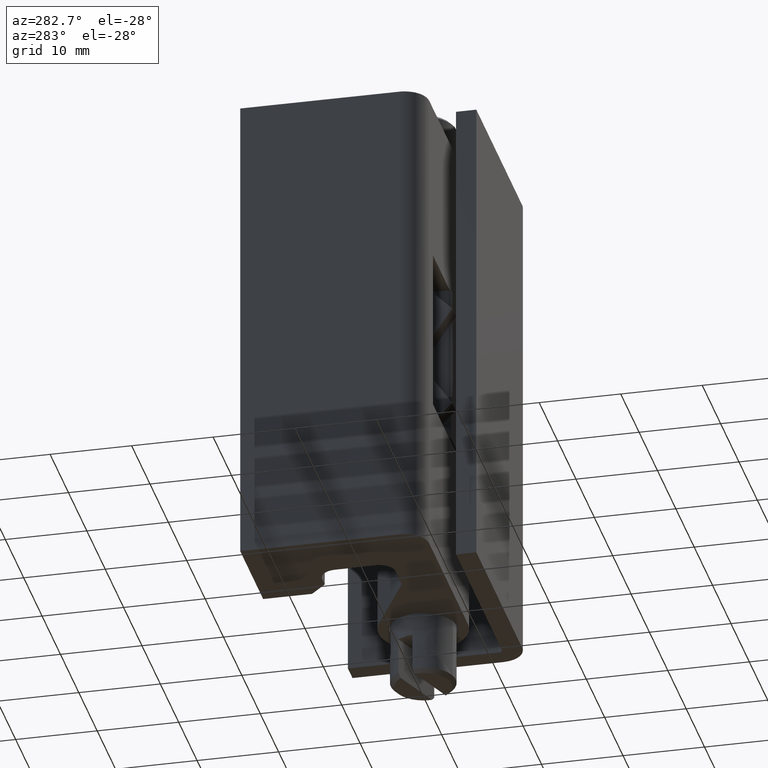
[diagram: clean part render]
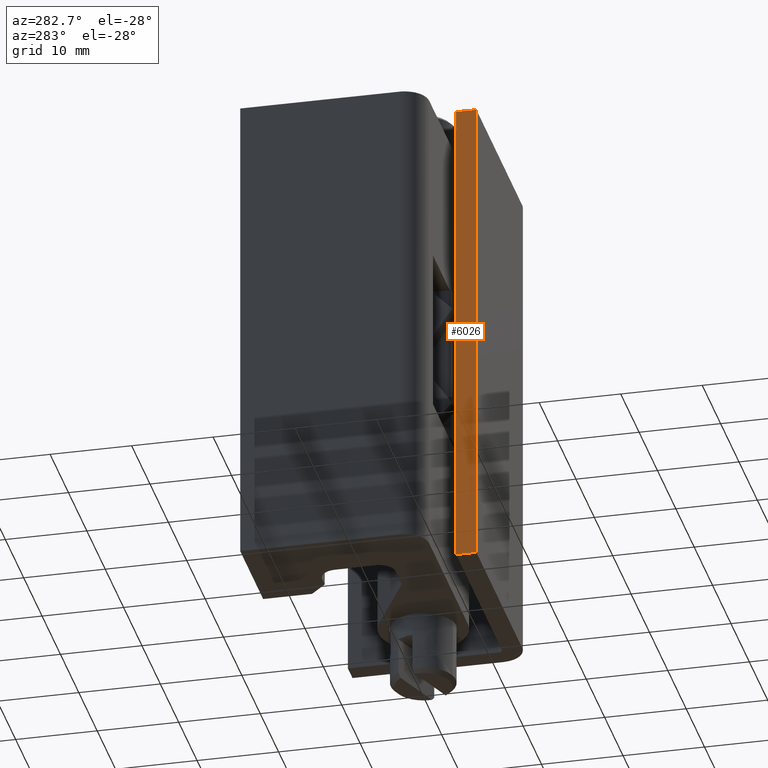
[diagram: same view with one face highlighted and labeled with its STEP entity id]
A machine part, auxiliary view. The second image highlights one B-rep face of the part: STEP entity #6026.
In plain terms, the highlighted face is a freeform B-spline surface patch.
Its self-contained STEP definition (entity closure, byte-faithful):
#5852=CARTESIAN_POINT('',(-17.700000649970001,-10.500000498723280,7.799999607541080));
#5853=VERTEX_POINT('',#5852);
#5861=CARTESIAN_POINT('',(-17.700000649969951,-8.000000379979650,7.799999607541080));
#5862=VERTEX_POINT('',#5861);
#5863=CARTESIAN_POINT('',(-17.700000649969951,-8.000000379979650,7.799999607541080));
#5864=CARTESIAN_POINT('',(-17.700000649970001,-10.500000498723280,7.799999607541080));
#5865=QUASI_UNIFORM_CURVE('',1,(#5863,#5864),.UNSPECIFIED.,.F.,.U.);
#5866=EDGE_CURVE('',#5862,#5853,#5865,.T.);
#5932=CARTESIAN_POINT('',(-17.700000649970001,-10.500000498723280,67.800002457386711));
#5933=VERTEX_POINT('',#5932);
#5992=CARTESIAN_POINT('',(-17.700000649969951,-8.000000379979650,67.800002457386711));
#5993=VERTEX_POINT('',#5992);
#5999=CARTESIAN_POINT('',(-17.700000649969951,-8.000000379979650,67.800002457386711));
#6000=CARTESIAN_POINT('',(-17.700000649970001,-10.500000498723280,67.800002457386711));
#6001=QUASI_UNIFORM_CURVE('',1,(#5999,#6000),.UNSPECIFIED.,.F.,.U.);
#6002=EDGE_CURVE('',#5993,#5933,#6001,.T.);
#6007=CARTESIAN_POINT('',(-17.700000649969951,-10.624876010505011,4.802999581482937));
#6008=CARTESIAN_POINT('',(-17.700000649969951,-7.875124912901403,4.802999581482937));
#6009=CARTESIAN_POINT('',(-17.700000649969951,-10.624876010505011,70.797004092770337));
#6010=CARTESIAN_POINT('',(-17.700000649969951,-7.875124912901403,70.797004092770337));
#6011=B_SPLINE_SURFACE_WITH_KNOTS('',1,1,((#6007,#6009),(#6008,#6010)),.UNSPECIFIED.,.F.,.F.,.U.,(2,2),(2,2),(0.0,2.749751097603611),(0.0,65.994004511287400),.UNSPECIFIED.);
#6012=ORIENTED_EDGE('',*,*,#5866,.T.);
#6013=CARTESIAN_POINT('',(-17.700000649970001,-10.500000498723280,67.800002457386711));
#6014=CARTESIAN_POINT('',(-17.700000649970001,-10.500000498723280,7.799999607541080));
#6015=QUASI_UNIFORM_CURVE('',1,(#6013,#6014),.UNSPECIFIED.,.F.,.U.);
#6016=EDGE_CURVE('',#5933,#5853,#6015,.T.);
#6017=ORIENTED_EDGE('',*,*,#6016,.F.);
#6018=ORIENTED_EDGE('',*,*,#6002,.F.);
#6019=CARTESIAN_POINT('',(-17.700000649969951,-8.000000379979650,67.800002457386711));
#6020=CARTESIAN_POINT('',(-17.700000649969951,-8.000000379979650,7.799999607541080));
#6021=QUASI_UNIFORM_CURVE('',1,(#6019,#6020),.UNSPECIFIED.,.F.,.U.);
#6022=EDGE_CURVE('',#5993,#5862,#6021,.T.);
#6023=ORIENTED_EDGE('',*,*,#6022,.T.);
#6024=EDGE_LOOP('',(#6012,#6017,#6018,#6023));
#6025=FACE_OUTER_BOUND('',#6024,.T.);
#6026=ADVANCED_FACE('',(#6025),#6011,.F.);